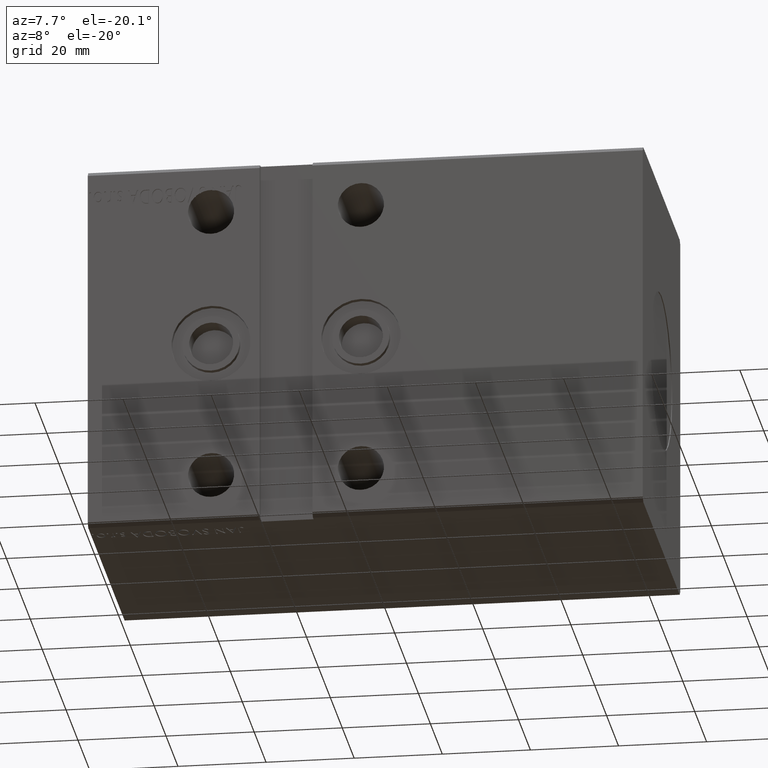
[diagram: clean part render]
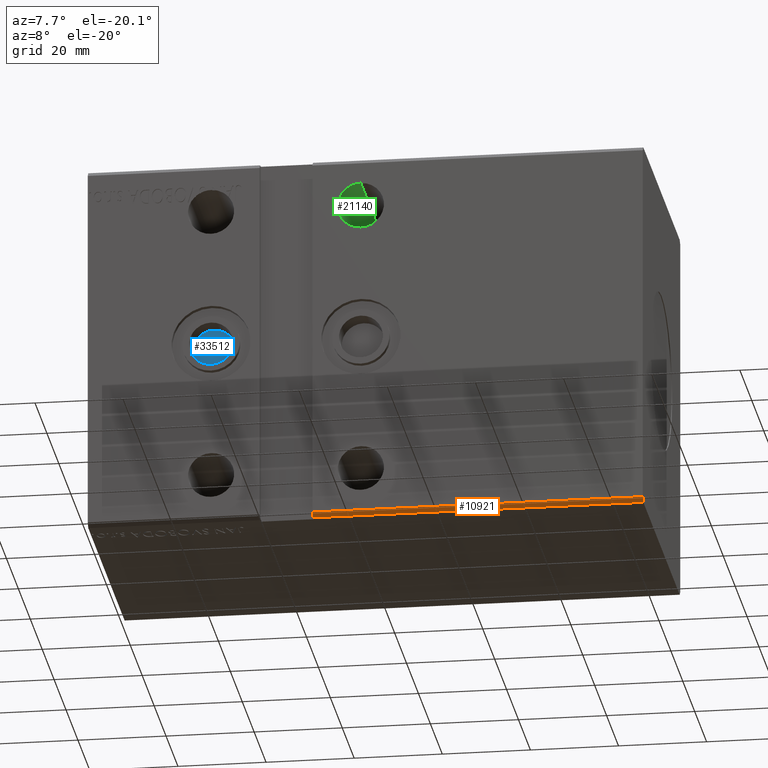
[diagram: same view with three faces highlighted in distinct colors, each labeled with its STEP entity id]
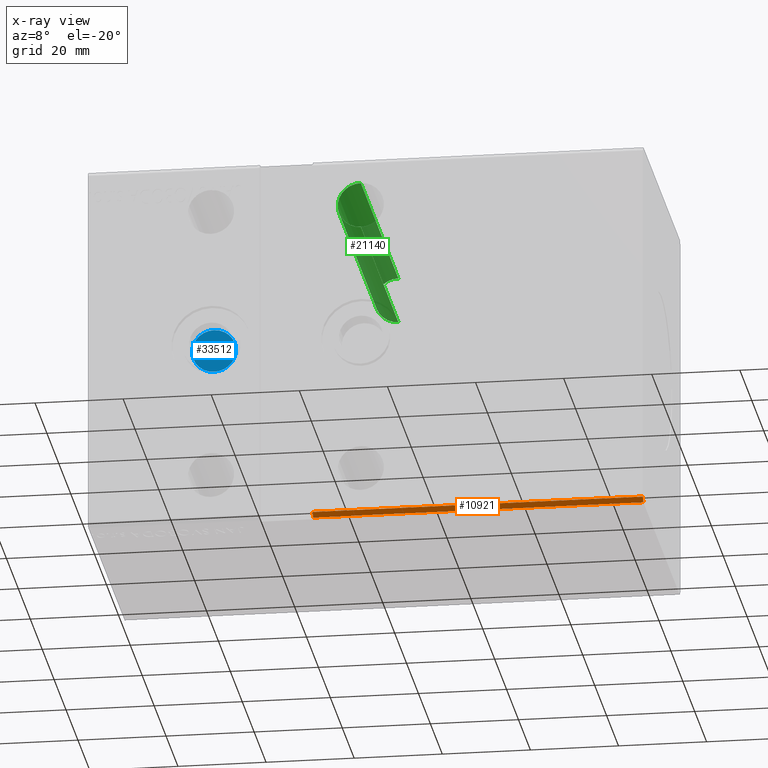
[diagram: x-ray of the same camera — body ghosted, the three highlighted faces saturated]
A machine part, auxiliary view with three faces highlighted in distinct colors.
The next image is the same camera in x-ray (body ghosted, the three faces saturated) — at least one of them is partly hidden behind the body in this view.
Their STEP definitions:

[orange] entity #10921 — the highlighted planar face has unit normal (-0, 0.7071, 0.7071).
#4175 = EDGE_LOOP ( 'NONE', ( #39617, #16526, #37613, #33017 ) ) ;
#4292 = DIRECTION ( 'NONE',  ( 0.000000000000000000, 0.7071067811865451302, -0.7071067811865500152 ) ) ;
#4359 = VECTOR ( 'NONE', #21009, 1000.000000000000114 ) ;
#5828 = CARTESIAN_POINT ( 'NONE',  ( 126.0000000000000000, -30.50000000000000711, -42.50000000000000711 ) ) ;
#7165 = EDGE_CURVE ( 'NONE', #25278, #30758, #22355, .T. ) ;
#9723 = VERTEX_POINT ( 'NONE', #27062 ) ;
#10921 = ADVANCED_FACE ( 'NONE', ( #37067 ), #24735, .F. ) ;
#13222 = CARTESIAN_POINT ( 'NONE',  ( 51.00000000000000000, -30.50000000000000711, -42.50000000000000711 ) ) ;
#13574 = CARTESIAN_POINT ( 'NONE',  ( 126.0000000000000000, -31.50000000000000000, -41.50000000000000711 ) ) ;
#15672 = CARTESIAN_POINT ( 'NONE',  ( 126.0000000000000000, -31.50000000000000000, -41.50000000000000711 ) ) ;
#16108 = DIRECTION ( 'NONE',  ( -0.000000000000000000, 0.7071067811865500152, 0.7071067811865451302 ) ) ;
#16526 = ORIENTED_EDGE ( 'NONE', *, *, #37561, .T. ) ;
#17851 = EDGE_CURVE ( 'NONE', #37384, #9723, #19948, .T. ) ;
#19948 = LINE ( 'NONE', #13574, #31703 ) ;
#21009 = DIRECTION ( 'NONE',  ( 0.000000000000000000, 0.7071067811865451302, -0.7071067811865500152 ) ) ;
#21463 = DIRECTION ( 'NONE',  ( 0.000000000000000000, -0.7071067811865451302, 0.7071067811865500152 ) ) ;
#22355 = LINE ( 'NONE', #31807, #27437 ) ;
#24083 = CARTESIAN_POINT ( 'NONE',  ( 126.0000000000000000, -31.50000000000000000, -41.50000000000000711 ) ) ;
#24735 = PLANE ( 'NONE',  #29588 ) ;
#25278 = VERTEX_POINT ( 'NONE', #5828 ) ;
#25903 = DIRECTION ( 'NONE',  ( -1.000000000000000000, -0.000000000000000000, -0.000000000000000000 ) ) ;
#27062 = CARTESIAN_POINT ( 'NONE',  ( 51.00000000000000000, -31.50000000000000000, -41.50000000000000711 ) ) ;
#27437 = VECTOR ( 'NONE', #31604, 1000.000000000000000 ) ;
#29359 = LINE ( 'NONE', #32442, #37910 ) ;
#29588 = AXIS2_PLACEMENT_3D ( 'NONE', #33997, #16108, #21463 ) ;
#30459 = LINE ( 'NONE', #24083, #4359 ) ;
#30758 = VERTEX_POINT ( 'NONE', #13222 ) ;
#31604 = DIRECTION ( 'NONE',  ( -1.000000000000000000, -0.000000000000000000, -0.000000000000000000 ) ) ;
#31703 = VECTOR ( 'NONE', #25903, 1000.000000000000000 ) ;
#31807 = CARTESIAN_POINT ( 'NONE',  ( 126.0000000000000000, -30.50000000000000711, -42.50000000000000711 ) ) ;
#32442 = CARTESIAN_POINT ( 'NONE',  ( 50.99999999999999289, -31.50000000000000000, -41.50000000000000711 ) ) ;
#33017 = ORIENTED_EDGE ( 'NONE', *, *, #33527, .F. ) ;
#33527 = EDGE_CURVE ( 'NONE', #37384, #25278, #30459, .T. ) ;
#33997 = CARTESIAN_POINT ( 'NONE',  ( 126.0000000000000000, -31.50000000000000000, -41.50000000000000711 ) ) ;
#37067 = FACE_OUTER_BOUND ( 'NONE', #4175, .T. ) ;
#37384 = VERTEX_POINT ( 'NONE', #15672 ) ;
#37561 = EDGE_CURVE ( 'NONE', #9723, #30758, #29359, .T. ) ;
#37613 = ORIENTED_EDGE ( 'NONE', *, *, #7165, .F. ) ;
#37910 = VECTOR ( 'NONE', #4292, 1000.000000000000114 ) ;
#39617 = ORIENTED_EDGE ( 'NONE', *, *, #17851, .T. ) ;

[blue] entity #33512 — the highlighted planar face has unit normal (0, -1, -0).
#158 = CIRCLE ( 'NONE', #23767, 4.999999999999997335 ) ;
#541 = DIRECTION ( 'NONE',  ( 0.000000000000000000, -1.000000000000000000, -5.507058653894625853E-17 ) ) ;
#3397 = ORIENTED_EDGE ( 'NONE', *, *, #23953, .T. ) ;
#5770 = DIRECTION ( 'NONE',  ( 0.000000000000000000, 0.000000000000000000, -1.000000000000000000 ) ) ;
#5809 = PLANE ( 'NONE',  #22067 ) ;
#8622 = ORIENTED_EDGE ( 'NONE', *, *, #16170, .T. ) ;
#11540 = CARTESIAN_POINT ( 'NONE',  ( 28.00000000000000355, -26.50000000000000000, -5.000000000000004441 ) ) ;
#12146 = VERTEX_POINT ( 'NONE', #25595 ) ;
#16170 = EDGE_CURVE ( 'NONE', #24085, #12146, #158, .T. ) ;
#16770 = CIRCLE ( 'NONE', #23971, 4.999999999999997335 ) ;
#18293 = CARTESIAN_POINT ( 'NONE',  ( 28.00000000000000355, -26.50000000000000000, -6.663540971212496592E-15 ) ) ;
#22067 = AXIS2_PLACEMENT_3D ( 'NONE', #24284, #30259, #40110 ) ;
#23767 = AXIS2_PLACEMENT_3D ( 'NONE', #18293, #24441, #5770 ) ;
#23953 = EDGE_CURVE ( 'NONE', #12146, #24085, #16770, .T. ) ;
#23971 = AXIS2_PLACEMENT_3D ( 'NONE', #37527, #541, #27867 ) ;
#24085 = VERTEX_POINT ( 'NONE', #11540 ) ;
#24284 = CARTESIAN_POINT ( 'NONE',  ( 28.00000000000000355, -26.50000000000000000, -6.663540971212496592E-15 ) ) ;
#24441 = DIRECTION ( 'NONE',  ( 0.000000000000000000, -1.000000000000000000, -5.507058653894625853E-17 ) ) ;
#25595 = CARTESIAN_POINT ( 'NONE',  ( 28.00000000000000355, -26.50000000000000000, 4.999999999999990230 ) ) ;
#27867 = DIRECTION ( 'NONE',  ( 0.000000000000000000, 0.000000000000000000, -1.000000000000000000 ) ) ;
#30259 = DIRECTION ( 'NONE',  ( 0.000000000000000000, -1.000000000000000000, -5.507058653894625853E-17 ) ) ;
#30867 = FACE_OUTER_BOUND ( 'NONE', #39715, .T. ) ;
#33512 = ADVANCED_FACE ( 'NONE', ( #30867 ), #5809, .T. ) ;
#37527 = CARTESIAN_POINT ( 'NONE',  ( 28.00000000000000355, -26.50000000000000000, -6.663540971212496592E-15 ) ) ;
#39715 = EDGE_LOOP ( 'NONE', ( #8622, #3397 ) ) ;
#40110 = DIRECTION ( 'NONE',  ( 0.000000000000000000, 5.507058653894625853E-17, -1.000000000000000000 ) ) ;

[green] entity #21140 — the highlighted cylindrical surface (edge-blend (fillet) strip) has radius 5.25 mm, axis along (-0, -1, -0).
#1060 = ORIENTED_EDGE ( 'NONE', *, *, #31160, .T. ) ;
#1707 = AXIS2_PLACEMENT_3D ( 'NONE', #31775, #12299, #37159 ) ;
#3225 = ORIENTED_EDGE ( 'NONE', *, *, #39377, .T. ) ;
#3469 = EDGE_LOOP ( 'NONE', ( #1060, #3225, #15322, #6809 ) ) ;
#5162 = CARTESIAN_POINT ( 'NONE',  ( 62.00000000000000000, -31.50000000000000000, 36.75000000000000711 ) ) ;
#5864 = VERTEX_POINT ( 'NONE', #5162 ) ;
#6809 = ORIENTED_EDGE ( 'NONE', *, *, #22250, .F. ) ;
#11229 = VERTEX_POINT ( 'NONE', #17685 ) ;
#11713 = FACE_OUTER_BOUND ( 'NONE', #3469, .T. ) ;
#12299 = DIRECTION ( 'NONE',  ( -0.000000000000000000, 1.000000000000000000, 5.507058653894625853E-17 ) ) ;
#14469 = DIRECTION ( 'NONE',  ( 0.000000000000000000, 0.000000000000000000, 1.000000000000000000 ) ) ;
#14765 = VERTEX_POINT ( 'NONE', #37531 ) ;
#15261 = CARTESIAN_POINT ( 'NONE',  ( 62.00000000000000000, 31.50000000000002842, 26.25000000000000355 ) ) ;
#15322 = ORIENTED_EDGE ( 'NONE', *, *, #32419, .T. ) ;
#15355 = LINE ( 'NONE', #17843, #34036 ) ;
#17685 = CARTESIAN_POINT ( 'NONE',  ( 62.00000000000000000, -31.50000000000000000, 26.24999999999999645 ) ) ;
#17843 = CARTESIAN_POINT ( 'NONE',  ( 62.00000000000000000, 31.50000000000002842, 36.75000000000001421 ) ) ;
#20773 = DIRECTION ( 'NONE',  ( 0.000000000000000000, 0.000000000000000000, -1.000000000000000000 ) ) ;
#21140 = ADVANCED_FACE ( 'NONE', ( #11713 ), #26928, .F. ) ;
#21537 = DIRECTION ( 'NONE',  ( -0.000000000000000000, -1.000000000000000000, -5.507058653894625853E-17 ) ) ;
#22250 = EDGE_CURVE ( 'NONE', #14765, #11229, #27403, .T. ) ;
#23907 = VECTOR ( 'NONE', #37047, 1000.000000000000000 ) ;
#24325 = DIRECTION ( 'NONE',  ( 0.000000000000000000, -1.000000000000000000, -0.000000000000000000 ) ) ;
#26928 = CYLINDRICAL_SURFACE ( 'NONE', #27172, 5.250000000000004441 ) ;
#27172 = AXIS2_PLACEMENT_3D ( 'NONE', #36780, #39472, #20773 ) ;
#27403 = LINE ( 'NONE', #15261, #23907 ) ;
#27989 = CIRCLE ( 'NONE', #34535, 5.250000000000004441 ) ;
#31160 = EDGE_CURVE ( 'NONE', #14765, #38628, #35194, .T. ) ;
#31596 = CARTESIAN_POINT ( 'NONE',  ( 62.00000000000000000, 31.50000000000002842, 36.75000000000001421 ) ) ;
#31775 = CARTESIAN_POINT ( 'NONE',  ( 62.00000000000000000, 31.50000000000002842, 31.50000000000000711 ) ) ;
#32419 = EDGE_CURVE ( 'NONE', #5864, #11229, #27989, .T. ) ;
#33991 = CARTESIAN_POINT ( 'NONE',  ( 62.00000000000000000, -31.50000000000000000, 31.50000000000000000 ) ) ;
#34036 = VECTOR ( 'NONE', #21537, 1000.000000000000000 ) ;
#34535 = AXIS2_PLACEMENT_3D ( 'NONE', #33991, #24325, #14469 ) ;
#35194 = CIRCLE ( 'NONE', #1707, 5.250000000000004441 ) ;
#36780 = CARTESIAN_POINT ( 'NONE',  ( 62.00000000000000000, 31.50000000000002842, 31.50000000000000711 ) ) ;
#37047 = DIRECTION ( 'NONE',  ( -0.000000000000000000, -1.000000000000000000, -5.507058653894625853E-17 ) ) ;
#37159 = DIRECTION ( 'NONE',  ( 0.000000000000000000, 0.000000000000000000, 1.000000000000000000 ) ) ;
#37531 = CARTESIAN_POINT ( 'NONE',  ( 62.00000000000000000, 31.50000000000002842, 26.25000000000000355 ) ) ;
#38628 = VERTEX_POINT ( 'NONE', #31596 ) ;
#39377 = EDGE_CURVE ( 'NONE', #38628, #5864, #15355, .T. ) ;
#39472 = DIRECTION ( 'NONE',  ( -0.000000000000000000, -1.000000000000000000, -5.507058653894625853E-17 ) ) ;